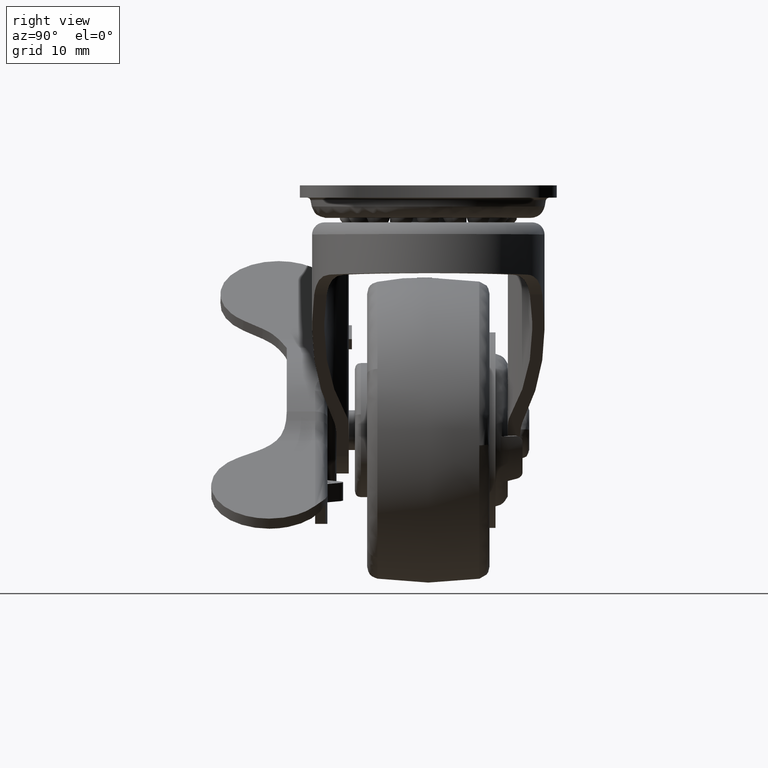
[diagram: clean part render]
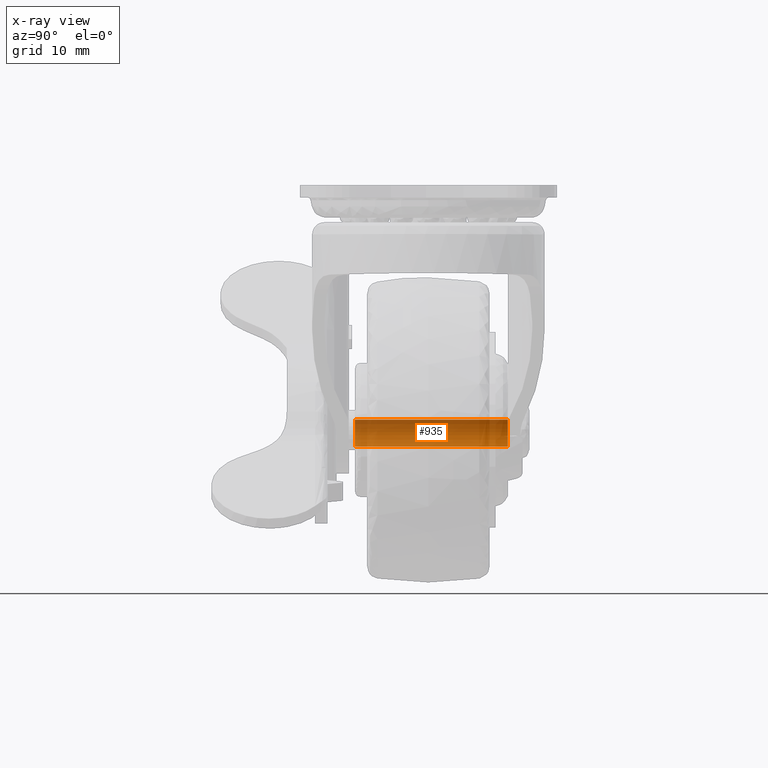
[diagram: x-ray — body ghosted, one internal face saturated and labeled with its STEP entity id]
A machine part, right view, then the same camera in x-ray: the body is ghosted and one INTERNAL B-rep face — a face not visible from any outside direction — is saturated and labeled: STEP entity #935.
In plain terms, the highlighted face is a freeform B-spline surface patch.
Its self-contained STEP definition (entity closure, byte-faithful):
#756=CARTESIAN_POINT('',(-2.481556283670535,12.989464000002030,-2.098661885709560));
#757=VERTEX_POINT('',#756);
#769=CARTESIAN_POINT('',(-2.481556282979609,-12.0,-2.098661886526698));
#770=VERTEX_POINT('',#769);
#771=CARTESIAN_POINT('',(-2.481556283670535,12.989464000002030,-2.098661885709560));
#772=CARTESIAN_POINT('',(-2.481556282979609,-12.0,-2.098661886526698));
#773=QUASI_UNIFORM_CURVE('',1,(#771,#772),.UNSPECIFIED.,.F.,.U.);
#774=EDGE_CURVE('',#757,#770,#773,.T.);
#818=CARTESIAN_POINT('',(-2.237152122917468,-12.0,2.357466232529134));
#819=VERTEX_POINT('',#818);
#829=CARTESIAN_POINT('',(-2.237152124168754,12.989463999998980,2.357466231341571));
#830=VERTEX_POINT('',#829);
#831=CARTESIAN_POINT('',(-2.237152124168754,12.989463999998980,2.357466231341571));
#832=CARTESIAN_POINT('',(-2.237152122917468,-12.0,2.357466232529134));
#833=QUASI_UNIFORM_CURVE('',1,(#831,#832),.UNSPECIFIED.,.F.,.U.);
#834=EDGE_CURVE('',#830,#819,#833,.T.);
#878=CARTESIAN_POINT('',(-2.237152371004837,13.614200600000000,2.357466705790080));
#879=CARTESIAN_POINT('',(-4.463434164069250,13.614200600000000,0.244804168649484));
#880=CARTESIAN_POINT('',(-2.481555839556663,13.614200600000006,-2.098661624741710));
#881=CARTESIAN_POINT('',(-2.237152371004837,-12.640355015000001,2.357466705790080));
#882=CARTESIAN_POINT('',(-4.463434164069250,-12.640355014999999,0.244804168649484));
#883=CARTESIAN_POINT('',(-2.481555839556663,-12.640355014999999,-2.098661624741710));
#891=(BOUNDED_SURFACE()B_SPLINE_SURFACE(2,1,((#878,#881),(#879,#882),(#880,#883)),.UNSPECIFIED.,.F.,.F.,.U.)B_SPLINE_SURFACE_WITH_KNOTS((3,3),(2,2),(0.0,5.167966565803886),(0.0,26.254555615000001),.UNSPECIFIED.)GEOMETRIC_REPRESENTATION_ITEM()RATIONAL_B_SPLINE_SURFACE(((1.0,1.0),(0.718822509939086,0.718822509939086),(0.977505800795127,0.977505800795127)))REPRESENTATION_ITEM('')SURFACE());
#892=CARTESIAN_POINT('',(-3.249999999999348,12.989464000000000,-0.000002059075331));
#893=VERTEX_POINT('',#892);
#894=CARTESIAN_POINT('',(-3.249999999999348,12.989464000000000,-0.000002059075331));
#895=CARTESIAN_POINT('',(-3.250391836777939,12.989464000000430,-0.404069273219758));
#896=CARTESIAN_POINT('',(-3.106172354650138,12.989464000001020,-1.164232299947021));
#897=CARTESIAN_POINT('',(-2.711944336063420,12.989464000001851,-1.826588921590189));
#898=CARTESIAN_POINT('',(-2.481556283670535,12.989464000002030,-2.098661885709560));
#899=B_SPLINE_CURVE_WITH_KNOTS('',3,(#894,#895,#896,#897,#898),.UNSPECIFIED.,.F.,.U.,(4,1,4),(0.000000032594482,1.212052323658065,2.281526558976715),.UNSPECIFIED.);
#900=EDGE_CURVE('',#893,#757,#899,.T.);
#901=ORIENTED_EDGE('',*,*,#900,.F.);
#902=CARTESIAN_POINT('',(-2.237152124168754,12.989463999998980,2.357466231341571));
#903=CARTESIAN_POINT('',(-2.416560037876370,12.989463999999071,2.187283363003552));
#904=CARTESIAN_POINT('',(-2.718424552785004,12.989463999999201,1.826888324608027));
#905=CARTESIAN_POINT('',(-3.128107892928370,12.989463999999559,1.043802487342362));
#906=CARTESIAN_POINT('',(-3.250424340701699,12.989463999999820,0.412204313860867));
#907=CARTESIAN_POINT('',(-3.249999999999348,12.989464000000000,-0.000002059075331));
#908=B_SPLINE_CURVE_WITH_KNOTS('',3,(#902,#903,#904,#905,#906,#907),.UNSPECIFIED.,.F.,.U.,(4,1,1,4),(0.000000023110227,0.741853526333075,1.401278259101193,2.637701208092770),.UNSPECIFIED.);
#909=EDGE_CURVE('',#830,#893,#908,.T.);
#910=ORIENTED_EDGE('',*,*,#909,.F.);
#911=ORIENTED_EDGE('',*,*,#834,.T.);
#912=CARTESIAN_POINT('',(-3.249999999999548,-12.0,-0.000002059075332));
#913=VERTEX_POINT('',#912);
#914=CARTESIAN_POINT('',(-2.237152122917468,-12.0,2.357466232529134));
#915=CARTESIAN_POINT('',(-2.416557876457286,-11.999999999999980,2.187284570866137));
#916=CARTESIAN_POINT('',(-2.718426424957638,-12.000000000000011,1.826888127886378));
#917=CARTESIAN_POINT('',(-3.128105334375384,-12.000000000000030,1.043802186177196));
#918=CARTESIAN_POINT('',(-3.250427488428239,-11.999999999999940,0.412205217614254));
#919=CARTESIAN_POINT('',(-3.249999999999548,-12.0,-0.000002059075332));
#920=B_SPLINE_CURVE_WITH_KNOTS('',3,(#914,#915,#916,#917,#918,#919),.UNSPECIFIED.,.F.,.U.,(4,1,1,4),(0.000000023110191,0.741853526818326,1.401278260017794,2.637701209818144),.UNSPECIFIED.);
#921=EDGE_CURVE('',#819,#913,#920,.T.);
#922=ORIENTED_EDGE('',*,*,#921,.T.);
#923=CARTESIAN_POINT('',(-3.249999999999548,-12.0,-0.000002059075332));
#924=CARTESIAN_POINT('',(-3.250133988817527,-12.000000000000050,-0.308974647007960));
#925=CARTESIAN_POINT('',(-3.178258226442014,-11.999999999999940,-0.807962681296454));
#926=CARTESIAN_POINT('',(-2.900099483568388,-12.000000000000060,-1.518919862597514));
#927=CARTESIAN_POINT('',(-2.650413596671108,-11.999999999999940,-1.899084384763406));
#928=CARTESIAN_POINT('',(-2.481556282979609,-12.0,-2.098661886526698));
#929=B_SPLINE_CURVE_WITH_KNOTS('',3,(#923,#924,#925,#926,#927,#928),.UNSPECIFIED.,.F.,.U.,(4,1,1,4),(0.000000032594678,0.926883505931950,1.497244081642119,2.281526560046972),.UNSPECIFIED.);
#930=EDGE_CURVE('',#913,#770,#929,.T.);
#931=ORIENTED_EDGE('',*,*,#930,.T.);
#932=ORIENTED_EDGE('',*,*,#774,.F.);
#933=EDGE_LOOP('',(#901,#910,#911,#922,#931,#932));
#934=FACE_OUTER_BOUND('',#933,.T.);
#935=ADVANCED_FACE('',(#934),#891,.F.);